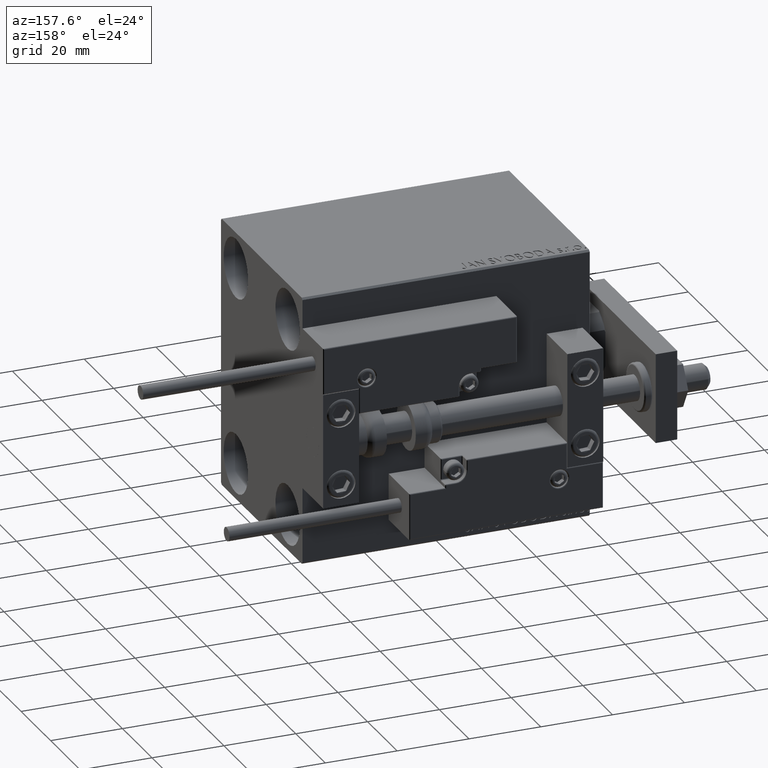
[diagram: clean part render]
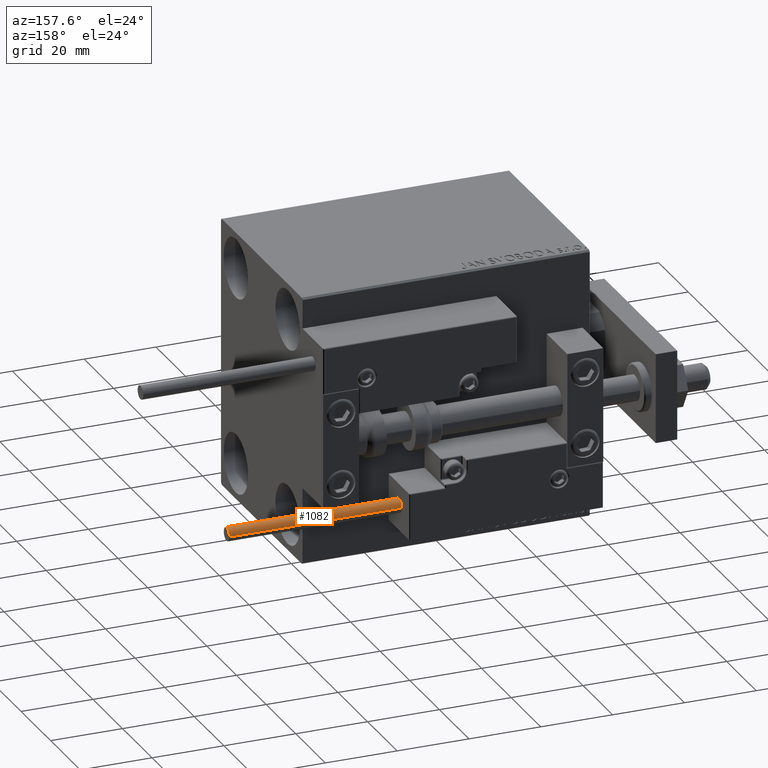
[diagram: same view with one face highlighted and labeled with its STEP entity id]
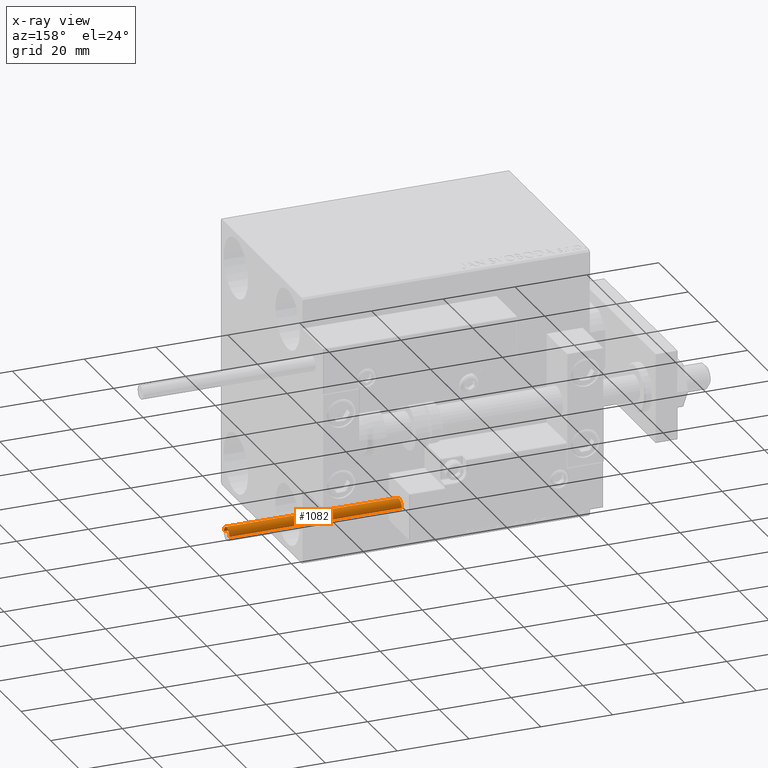
[diagram: x-ray of the same camera — body ghosted, the highlighted face saturated]
A machine part, auxiliary view. The second image highlights one B-rep face of the part: STEP entity #1082.
The next image is the same camera in x-ray: the body ghosted, the highlighted face saturated — about 0% of this face is hidden behind the body in this view.
In plain terms, the highlighted cylindrical surface (edge-blend (fillet) strip) has radius 1.9 mm, axis along (-1, 0, 0).
Its self-contained STEP definition (entity closure, byte-faithful):
#40 = DIRECTION ( 'NONE',  ( -0.000000000000000000, -0.000000000000000000, -1.000000000000000000 ) ) ;
#540 = CYLINDRICAL_SURFACE ( 'NONE', #27054, 1.899999999999999467 ) ;
#699 = CARTESIAN_POINT ( 'NONE',  ( -1.899999999999999467, 0.000000000000000000, 0.000000000000000000 ) ) ;
#1082 = ADVANCED_FACE ( 'NONE', ( #11248 ), #540, .T. ) ;
#1273 = VECTOR ( 'NONE', #26378, 1000.000000000000000 ) ;
#1294 = AXIS2_PLACEMENT_3D ( 'NONE', #19311, #15729, #23638 ) ;
#2304 = ORIENTED_EDGE ( 'NONE', *, *, #8899, .T. ) ;
#2812 = DIRECTION ( 'NONE',  ( 1.000000000000000000, 0.000000000000000000, 0.000000000000000000 ) ) ;
#3156 = VERTEX_POINT ( 'NONE', #699 ) ;
#3565 = DIRECTION ( 'NONE',  ( 0.000000000000000000, 0.000000000000000000, 1.000000000000000000 ) ) ;
#3663 = CARTESIAN_POINT ( 'NONE',  ( 1.899999999999999467, 2.326828918379970872E-16, 48.00000000000000000 ) ) ;
#3806 = ORIENTED_EDGE ( 'NONE', *, *, #48277, .T. ) ;
#4733 = DIRECTION ( 'NONE',  ( -0.000000000000000000, -0.000000000000000000, -1.000000000000000000 ) ) ;
#6991 = CIRCLE ( 'NONE', #1294, 1.899999999999999467 ) ;
#8899 = EDGE_CURVE ( 'NONE', #31305, #33926, #13895, .T. ) ;
#11248 = FACE_OUTER_BOUND ( 'NONE', #18096, .T. ) ;
#13895 = LINE ( 'NONE', #22316, #1273 ) ;
#15015 = CARTESIAN_POINT ( 'NONE',  ( -1.899999999999999467, 0.000000000000000000, 48.00000000000000000 ) ) ;
#15729 = DIRECTION ( 'NONE',  ( 0.000000000000000000, 0.000000000000000000, 1.000000000000000000 ) ) ;
#16053 = EDGE_CURVE ( 'NONE', #31305, #38540, #43208, .T. ) ;
#16219 = CARTESIAN_POINT ( 'NONE',  ( -1.899999999999999467, 0.000000000000000000, 48.00000000000000000 ) ) ;
#18096 = EDGE_LOOP ( 'NONE', ( #36208, #2304, #3806, #39537 ) ) ;
#18890 = DIRECTION ( 'NONE',  ( -1.000000000000000000, 0.000000000000000000, 0.000000000000000000 ) ) ;
#19311 = CARTESIAN_POINT ( 'NONE',  ( 0.000000000000000000, 0.000000000000000000, 0.000000000000000000 ) ) ;
#20883 = VECTOR ( 'NONE', #4733, 1000.000000000000000 ) ;
#21261 = AXIS2_PLACEMENT_3D ( 'NONE', #37690, #3565, #2812 ) ;
#22316 = CARTESIAN_POINT ( 'NONE',  ( 1.899999999999999467, 2.326828918379970872E-16, 48.00000000000000000 ) ) ;
#23638 = DIRECTION ( 'NONE',  ( 1.000000000000000000, 0.000000000000000000, 0.000000000000000000 ) ) ;
#26378 = DIRECTION ( 'NONE',  ( -0.000000000000000000, -0.000000000000000000, -1.000000000000000000 ) ) ;
#26532 = CARTESIAN_POINT ( 'NONE',  ( 0.000000000000000000, 0.000000000000000000, 48.00000000000000000 ) ) ;
#27054 = AXIS2_PLACEMENT_3D ( 'NONE', #26532, #40, #18890 ) ;
#31305 = VERTEX_POINT ( 'NONE', #3663 ) ;
#33754 = EDGE_CURVE ( 'NONE', #38540, #3156, #39622, .T. ) ;
#33926 = VERTEX_POINT ( 'NONE', #37545 ) ;
#36208 = ORIENTED_EDGE ( 'NONE', *, *, #16053, .F. ) ;
#37545 = CARTESIAN_POINT ( 'NONE',  ( 1.899999999999999467, 2.326828918379970872E-16, 0.000000000000000000 ) ) ;
#37690 = CARTESIAN_POINT ( 'NONE',  ( 0.000000000000000000, 0.000000000000000000, 48.00000000000000000 ) ) ;
#38540 = VERTEX_POINT ( 'NONE', #15015 ) ;
#39537 = ORIENTED_EDGE ( 'NONE', *, *, #33754, .F. ) ;
#39622 = LINE ( 'NONE', #16219, #20883 ) ;
#43208 = CIRCLE ( 'NONE', #21261, 1.899999999999999467 ) ;
#48277 = EDGE_CURVE ( 'NONE', #33926, #3156, #6991, .T. ) ;